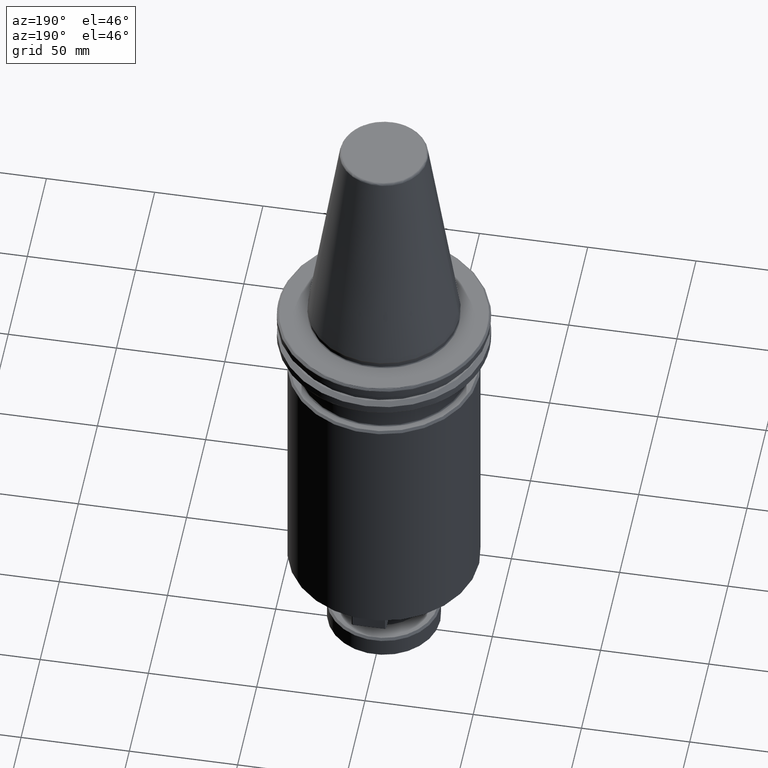
[diagram: clean part render]
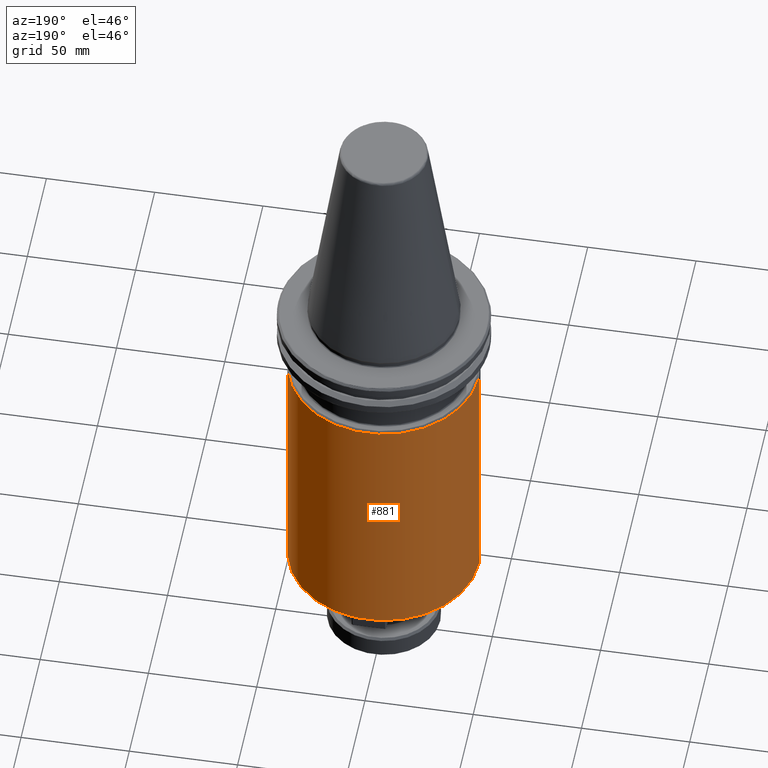
[diagram: same view with one face highlighted and labeled with its STEP entity id]
A machine part, auxiliary view. The second image highlights one B-rep face of the part: STEP entity #881.
In plain terms, the highlighted cylindrical surface (partial cylindrical patch) has radius 44 mm, axis along (0, 0, 1).
Its self-contained STEP definition (entity closure, byte-faithful):
#64 = EDGE_CURVE ( 'NONE', #1549, #2789, #1367, .T. ) ;
#359 = DIRECTION ( 'NONE',  ( 1.000000000000000000, 0.0000000000000000000, 0.0000000000000000000 ) ) ;
#362 = DIRECTION ( 'NONE',  ( 0.0000000000000000000, 0.0000000000000000000, 1.000000000000000000 ) ) ;
#368 = CARTESIAN_POINT ( 'NONE',  ( 0.0000000000000000000, 0.0000000000000000000, -159.0000000000000000 ) ) ;
#567 = CARTESIAN_POINT ( 'NONE',  ( -44.00000000000000000, 5.388445916248353600E-015, -159.0000000000000000 ) ) ;
#612 = DIRECTION ( 'NONE',  ( -0.0000000000000000000, -0.0000000000000000000, -1.000000000000000000 ) ) ;
#847 = CARTESIAN_POINT ( 'NONE',  ( 44.00000000000000000, 5.388445916248353600E-015, -37.00000000000000700 ) ) ;
#878 = ORIENTED_EDGE ( 'NONE', *, *, #4382, .T. ) ;
#881 = ADVANCED_FACE ( 'NONE', ( #4057 ), #2747, .T. ) ;
#883 = AXIS2_PLACEMENT_3D ( 'NONE', #368, #362, #359 ) ;
#997 = ORIENTED_EDGE ( 'NONE', *, *, #1520, .T. ) ;
#1367 = LINE ( 'NONE', #3297, #4122 ) ;
#1389 = CARTESIAN_POINT ( 'NONE',  ( 0.0000000000000000000, 0.0000000000000000000, 0.0000000000000000000 ) ) ;
#1520 = EDGE_CURVE ( 'NONE', #4858, #2309, #4464, .T. ) ;
#1549 = VERTEX_POINT ( 'NONE', #3859 ) ;
#1664 = AXIS2_PLACEMENT_3D ( 'NONE', #1389, #2540, #4050 ) ;
#1893 = VECTOR ( 'NONE', #3868, 1000.000000000000000 ) ;
#1917 = CIRCLE ( 'NONE', #883, 44.00000000000000000 ) ;
#1928 = CARTESIAN_POINT ( 'NONE',  ( -44.00000000000000000, 0.0000000000000000000, -37.00000000000000700 ) ) ;
#2130 = AXIS2_PLACEMENT_3D ( 'NONE', #2924, #612, #3341 ) ;
#2309 = VERTEX_POINT ( 'NONE', #1928 ) ;
#2422 = DIRECTION ( 'NONE',  ( 0.0000000000000000000, 0.0000000000000000000, 1.000000000000000000 ) ) ;
#2540 = DIRECTION ( 'NONE',  ( 0.0000000000000000000, 0.0000000000000000000, 1.000000000000000000 ) ) ;
#2576 = ORIENTED_EDGE ( 'NONE', *, *, #3617, .T. ) ;
#2747 = CYLINDRICAL_SURFACE ( 'NONE', #1664, 44.00000000000000000 ) ;
#2789 = VERTEX_POINT ( 'NONE', #847 ) ;
#2924 = CARTESIAN_POINT ( 'NONE',  ( 0.0000000000000000000, 0.0000000000000000000, -37.00000000000000700 ) ) ;
#3297 = CARTESIAN_POINT ( 'NONE',  ( 44.00000000000000000, 0.0000000000000000000, 0.0000000000000000000 ) ) ;
#3341 = DIRECTION ( 'NONE',  ( 1.000000000000000000, 0.0000000000000000000, 0.0000000000000000000 ) ) ;
#3617 = EDGE_CURVE ( 'NONE', #1549, #4858, #1917, .T. ) ;
#3859 = CARTESIAN_POINT ( 'NONE',  ( 44.00000000000000000, 0.0000000000000000000, -159.0000000000000000 ) ) ;
#3868 = DIRECTION ( 'NONE',  ( 0.0000000000000000000, 0.0000000000000000000, 1.000000000000000000 ) ) ;
#3873 = CARTESIAN_POINT ( 'NONE',  ( -44.00000000000000000, 5.388445916248353600E-015, 0.0000000000000000000 ) ) ;
#4050 = DIRECTION ( 'NONE',  ( 1.000000000000000000, 0.0000000000000000000, 0.0000000000000000000 ) ) ;
#4057 = FACE_OUTER_BOUND ( 'NONE', #4724, .T. ) ;
#4122 = VECTOR ( 'NONE', #2422, 1000.000000000000000 ) ;
#4382 = EDGE_CURVE ( 'NONE', #2309, #2789, #4518, .T. ) ;
#4464 = LINE ( 'NONE', #3873, #1893 ) ;
#4518 = CIRCLE ( 'NONE', #2130, 44.00000000000000000 ) ;
#4667 = ORIENTED_EDGE ( 'NONE', *, *, #64, .F. ) ;
#4724 = EDGE_LOOP ( 'NONE', ( #2576, #997, #878, #4667 ) ) ;
#4858 = VERTEX_POINT ( 'NONE', #567 ) ;